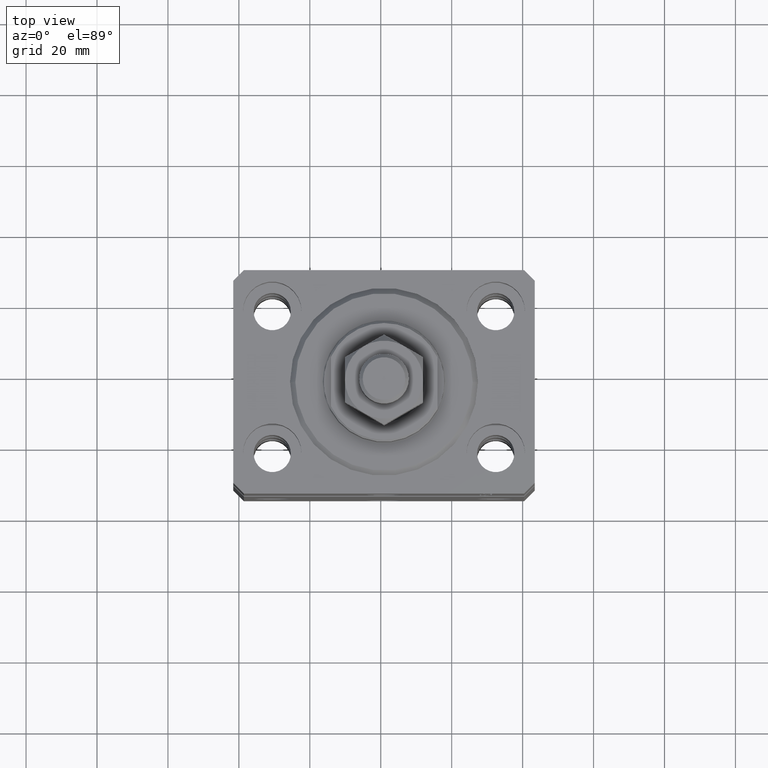
[diagram: clean part render]
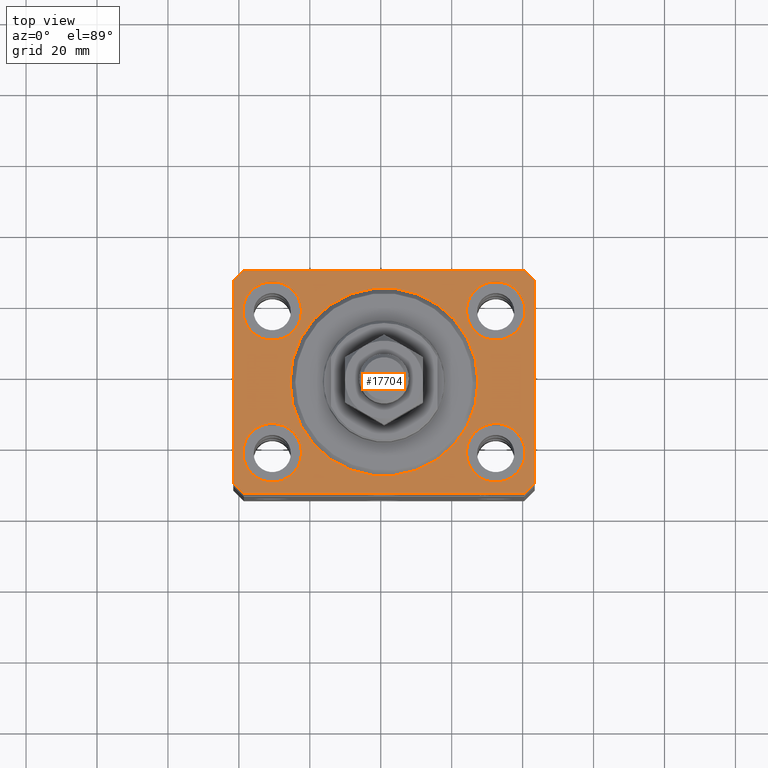
[diagram: same view with one face highlighted and labeled with its STEP entity id]
A machine part, top view. The second image highlights one B-rep face of the part: STEP entity #17704.
In plain terms, the highlighted planar face has unit normal (0, 0, 1).
Its self-contained STEP definition (entity closure, byte-faithful):
#8 = DIRECTION ( 'NONE',  ( -1.000000000000000000, 0.000000000000000000, 0.000000000000000000 ) ) ;
#14 = EDGE_CURVE ( 'NONE', #45617, #3945, #15445, .T. ) ;
#529 = CARTESIAN_POINT ( 'NONE',  ( 23.25000000000000355, -20.00000000000000000, 0.000000000000000000 ) ) ;
#639 = AXIS2_PLACEMENT_3D ( 'NONE', #39961, #21237, #14121 ) ;
#934 = LINE ( 'NONE', #43893, #38611 ) ;
#1935 = CARTESIAN_POINT ( 'NONE',  ( -39.50000000000000711, 31.50000000000000000, 0.000000000000000000 ) ) ;
#2170 = DIRECTION ( 'NONE',  ( 1.000000000000000000, 0.000000000000000000, 0.000000000000000000 ) ) ;
#2972 = ORIENTED_EDGE ( 'NONE', *, *, #39874, .F. ) ;
#3442 = EDGE_CURVE ( 'NONE', #38457, #10755, #3960, .T. ) ;
#3489 = ORIENTED_EDGE ( 'NONE', *, *, #3442, .F. ) ;
#3611 = CARTESIAN_POINT ( 'NONE',  ( -42.50000000000000000, -28.50000000000000000, 0.000000000000000000 ) ) ;
#3807 = EDGE_LOOP ( 'NONE', ( #12497, #35484 ) ) ;
#3820 = EDGE_LOOP ( 'NONE', ( #45065, #45287 ) ) ;
#3945 = VERTEX_POINT ( 'NONE', #41639 ) ;
#3960 = CIRCLE ( 'NONE', #8507, 8.250000000000000000 ) ;
#3997 = DIRECTION ( 'NONE',  ( 8.886653596232072440E-15, 1.000000000000000000, 0.000000000000000000 ) ) ;
#4340 = VERTEX_POINT ( 'NONE', #12050 ) ;
#4521 = ORIENTED_EDGE ( 'NONE', *, *, #17115, .T. ) ;
#4578 = ORIENTED_EDGE ( 'NONE', *, *, #9215, .T. ) ;
#4871 = EDGE_LOOP ( 'NONE', ( #14316, #22277, #28996, #4578, #4521, #46361, #23792, #21116 ) ) ;
#6419 = VECTOR ( 'NONE', #3997, 1000.000000000000000 ) ;
#6818 = VERTEX_POINT ( 'NONE', #1935 ) ;
#6972 = EDGE_CURVE ( 'NONE', #4340, #29393, #16177, .T. ) ;
#7039 = CARTESIAN_POINT ( 'NONE',  ( -39.75000000000000000, -20.00000000000000000, 0.000000000000000000 ) ) ;
#7576 = EDGE_LOOP ( 'NONE', ( #14851, #2972 ) ) ;
#7579 = CARTESIAN_POINT ( 'NONE',  ( 42.50000000000000711, -28.50000000000000355, 0.000000000000000000 ) ) ;
#7616 = VERTEX_POINT ( 'NONE', #529 ) ;
#7978 = CIRCLE ( 'NONE', #20095, 8.250000000000000000 ) ;
#7997 = AXIS2_PLACEMENT_3D ( 'NONE', #11212, #29471, #17866 ) ;
#8038 = DIRECTION ( 'NONE',  ( 0.000000000000000000, 0.000000000000000000, 1.000000000000000000 ) ) ;
#8353 = EDGE_CURVE ( 'NONE', #10755, #38457, #7978, .T. ) ;
#8507 = AXIS2_PLACEMENT_3D ( 'NONE', #23716, #20152, #16588 ) ;
#8838 = FACE_BOUND ( 'NONE', #28707, .T. ) ;
#8877 = CARTESIAN_POINT ( 'NONE',  ( 23.25000000000000355, 20.00000000000001066, 0.000000000000000000 ) ) ;
#9215 = EDGE_CURVE ( 'NONE', #15326, #12354, #14497, .T. ) ;
#9984 = VERTEX_POINT ( 'NONE', #8877 ) ;
#10467 = ORIENTED_EDGE ( 'NONE', *, *, #41407, .F. ) ;
#10755 = VERTEX_POINT ( 'NONE', #32361 ) ;
#10862 = ORIENTED_EDGE ( 'NONE', *, *, #34164, .F. ) ;
#11038 = FACE_BOUND ( 'NONE', #3807, .T. ) ;
#11212 = CARTESIAN_POINT ( 'NONE',  ( 31.50000000000000000, 20.00000000000001066, 0.000000000000000000 ) ) ;
#11892 = CARTESIAN_POINT ( 'NONE',  ( 42.50000000000051870, 28.49999999999995381, 0.000000000000000000 ) ) ;
#12050 = CARTESIAN_POINT ( 'NONE',  ( -23.25000000000000000, 20.00000000000000000, 0.000000000000000000 ) ) ;
#12072 = CARTESIAN_POINT ( 'NONE',  ( -31.50000000000000000, 20.00000000000000000, 0.000000000000000000 ) ) ;
#12215 = EDGE_CURVE ( 'NONE', #29393, #4340, #45318, .T. ) ;
#12265 = AXIS2_PLACEMENT_3D ( 'NONE', #43513, #32349, #39706 ) ;
#12354 = VERTEX_POINT ( 'NONE', #43138 ) ;
#12386 = FACE_BOUND ( 'NONE', #21836, .T. ) ;
#12497 = ORIENTED_EDGE ( 'NONE', *, *, #6972, .F. ) ;
#12744 = DIRECTION ( 'NONE',  ( 1.000000000000000000, 0.000000000000000000, 0.000000000000000000 ) ) ;
#13059 = CARTESIAN_POINT ( 'NONE',  ( 39.74999999999999289, 20.00000000000001066, 0.000000000000000000 ) ) ;
#14076 = EDGE_CURVE ( 'NONE', #7616, #37538, #27176, .T. ) ;
#14121 = DIRECTION ( 'NONE',  ( 1.000000000000000000, 0.000000000000000000, 0.000000000000000000 ) ) ;
#14316 = ORIENTED_EDGE ( 'NONE', *, *, #37663, .T. ) ;
#14383 = AXIS2_PLACEMENT_3D ( 'NONE', #40205, #15940, #44020 ) ;
#14497 = LINE ( 'NONE', #3611, #39891 ) ;
#14851 = ORIENTED_EDGE ( 'NONE', *, *, #22473, .F. ) ;
#15060 = PLANE ( 'NONE',  #14383 ) ;
#15326 = VERTEX_POINT ( 'NONE', #35602 ) ;
#15425 = AXIS2_PLACEMENT_3D ( 'NONE', #46288, #16858, #2170 ) ;
#15445 = LINE ( 'NONE', #11892, #21292 ) ;
#15581 = EDGE_CURVE ( 'NONE', #27638, #15326, #16353, .T. ) ;
#15839 = EDGE_CURVE ( 'NONE', #37538, #7616, #21895, .T. ) ;
#15940 = DIRECTION ( 'NONE',  ( 0.000000000000000000, 0.000000000000000000, 1.000000000000000000 ) ) ;
#16177 = CIRCLE ( 'NONE', #15425, 8.250000000000000000 ) ;
#16190 = CIRCLE ( 'NONE', #28327, 26.50000000000000355 ) ;
#16353 = LINE ( 'NONE', #41521, #40846 ) ;
#16530 = CARTESIAN_POINT ( 'NONE',  ( 31.50000000000000000, -20.00000000000000000, 0.000000000000000000 ) ) ;
#16588 = DIRECTION ( 'NONE',  ( 1.000000000000000000, 0.000000000000000000, 0.000000000000000000 ) ) ;
#16858 = DIRECTION ( 'NONE',  ( 0.000000000000000000, 0.000000000000000000, 1.000000000000000000 ) ) ;
#16998 = AXIS2_PLACEMENT_3D ( 'NONE', #29607, #8038, #22718 ) ;
#17115 = EDGE_CURVE ( 'NONE', #12354, #39568, #934, .T. ) ;
#17505 = VECTOR ( 'NONE', #22413, 1000.000000000000000 ) ;
#17704 = ADVANCED_FACE ( 'NONE', ( #12386, #33090, #8838, #11038, #41337, #36404 ), #15060, .T. ) ;
#17866 = DIRECTION ( 'NONE',  ( 1.000000000000000000, 0.000000000000000000, 0.000000000000000000 ) ) ;
#18571 = CARTESIAN_POINT ( 'NONE',  ( 0.000000000000000000, 0.000000000000000000, 0.000000000000000000 ) ) ;
#18641 = CARTESIAN_POINT ( 'NONE',  ( -26.50000000000000355, 3.245314017740486554E-15, 0.000000000000000000 ) ) ;
#19638 = DIRECTION ( 'NONE',  ( 0.7071067811865483499, 0.7071067811865466846, 0.000000000000000000 ) ) ;
#19948 = EDGE_CURVE ( 'NONE', #6818, #27638, #29769, .T. ) ;
#20091 = DIRECTION ( 'NONE',  ( 0.000000000000000000, 0.000000000000000000, 1.000000000000000000 ) ) ;
#20095 = AXIS2_PLACEMENT_3D ( 'NONE', #28286, #35164, #39194 ) ;
#20152 = DIRECTION ( 'NONE',  ( 0.000000000000000000, 0.000000000000000000, 1.000000000000000000 ) ) ;
#21116 = ORIENTED_EDGE ( 'NONE', *, *, #14, .T. ) ;
#21226 = VERTEX_POINT ( 'NONE', #7579 ) ;
#21237 = DIRECTION ( 'NONE',  ( 0.000000000000000000, 0.000000000000000000, 1.000000000000000000 ) ) ;
#21292 = VECTOR ( 'NONE', #26372, 1000.000000000000114 ) ;
#21836 = EDGE_LOOP ( 'NONE', ( #22081, #3489 ) ) ;
#21895 = CIRCLE ( 'NONE', #25700, 8.249999999999992895 ) ;
#22081 = ORIENTED_EDGE ( 'NONE', *, *, #8353, .F. ) ;
#22277 = ORIENTED_EDGE ( 'NONE', *, *, #19948, .T. ) ;
#22413 = DIRECTION ( 'NONE',  ( -0.7071067811865471286, -0.7071067811865479058, 0.000000000000000000 ) ) ;
#22473 = EDGE_CURVE ( 'NONE', #45790, #28787, #44110, .T. ) ;
#22718 = DIRECTION ( 'NONE',  ( 1.000000000000000000, 0.000000000000000000, 0.000000000000000000 ) ) ;
#22724 = CARTESIAN_POINT ( 'NONE',  ( 39.50000000000000711, -31.50000000000000000, 0.000000000000000000 ) ) ;
#23084 = DIRECTION ( 'NONE',  ( 0.000000000000000000, 0.000000000000000000, 1.000000000000000000 ) ) ;
#23716 = CARTESIAN_POINT ( 'NONE',  ( -31.50000000000000000, -20.00000000000000000, 0.000000000000000000 ) ) ;
#23792 = ORIENTED_EDGE ( 'NONE', *, *, #32386, .T. ) ;
#24664 = CIRCLE ( 'NONE', #7997, 8.249999999999992895 ) ;
#25700 = AXIS2_PLACEMENT_3D ( 'NONE', #16530, #20091, #12744 ) ;
#26372 = DIRECTION ( 'NONE',  ( -0.7071067811865356934, 0.7071067811865594521, 0.000000000000000000 ) ) ;
#26540 = LINE ( 'NONE', #22724, #44942 ) ;
#26552 = DIRECTION ( 'NONE',  ( 0.000000000000000000, 0.000000000000000000, 1.000000000000000000 ) ) ;
#27176 = CIRCLE ( 'NONE', #639, 8.249999999999992895 ) ;
#27586 = VECTOR ( 'NONE', #8, 1000.000000000000000 ) ;
#27637 = CARTESIAN_POINT ( 'NONE',  ( 39.50000000000000711, -31.50000000000000000, 0.000000000000000000 ) ) ;
#27638 = VERTEX_POINT ( 'NONE', #36254 ) ;
#28286 = CARTESIAN_POINT ( 'NONE',  ( -31.50000000000000000, -20.00000000000000000, 0.000000000000000000 ) ) ;
#28327 = AXIS2_PLACEMENT_3D ( 'NONE', #18571, #23084, #30198 ) ;
#28398 = CIRCLE ( 'NONE', #16998, 8.249999999999992895 ) ;
#28434 = EDGE_CURVE ( 'NONE', #39568, #21226, #26540, .T. ) ;
#28707 = EDGE_LOOP ( 'NONE', ( #10862, #10467 ) ) ;
#28787 = VERTEX_POINT ( 'NONE', #18641 ) ;
#28996 = ORIENTED_EDGE ( 'NONE', *, *, #15581, .T. ) ;
#29393 = VERTEX_POINT ( 'NONE', #43934 ) ;
#29471 = DIRECTION ( 'NONE',  ( 0.000000000000000000, 0.000000000000000000, 1.000000000000000000 ) ) ;
#29607 = CARTESIAN_POINT ( 'NONE',  ( 31.50000000000000000, 20.00000000000001066, 0.000000000000000000 ) ) ;
#29769 = LINE ( 'NONE', #33325, #17505 ) ;
#30120 = CARTESIAN_POINT ( 'NONE',  ( 42.50000000000051870, 28.49999999999995381, 0.000000000000000000 ) ) ;
#30198 = DIRECTION ( 'NONE',  ( 1.000000000000000000, 0.000000000000000000, 0.000000000000000000 ) ) ;
#30889 = CARTESIAN_POINT ( 'NONE',  ( 39.74999999999999289, -20.00000000000000000, 0.000000000000000000 ) ) ;
#32349 = DIRECTION ( 'NONE',  ( 0.000000000000000000, 0.000000000000000000, 1.000000000000000000 ) ) ;
#32361 = CARTESIAN_POINT ( 'NONE',  ( -23.25000000000000000, -20.00000000000000000, 0.000000000000000000 ) ) ;
#32386 = EDGE_CURVE ( 'NONE', #21226, #45617, #43858, .T. ) ;
#32758 = DIRECTION ( 'NONE',  ( 0.7071067811865471286, -0.7071067811865479058, 0.000000000000000000 ) ) ;
#33090 = FACE_BOUND ( 'NONE', #3820, .T. ) ;
#33325 = CARTESIAN_POINT ( 'NONE',  ( -39.50000000000000711, 31.50000000000000000, 0.000000000000000000 ) ) ;
#34164 = EDGE_CURVE ( 'NONE', #43340, #9984, #24664, .T. ) ;
#35164 = DIRECTION ( 'NONE',  ( 0.000000000000000000, 0.000000000000000000, 1.000000000000000000 ) ) ;
#35384 = CARTESIAN_POINT ( 'NONE',  ( 39.50000000000056843, 31.50000000000000000, 0.000000000000000000 ) ) ;
#35484 = ORIENTED_EDGE ( 'NONE', *, *, #12215, .F. ) ;
#35602 = CARTESIAN_POINT ( 'NONE',  ( -42.50000000000000000, -28.50000000000000000, 0.000000000000000000 ) ) ;
#36254 = CARTESIAN_POINT ( 'NONE',  ( -42.50000000000000000, 28.50000000000000000, 0.000000000000000000 ) ) ;
#36404 = FACE_OUTER_BOUND ( 'NONE', #4871, .T. ) ;
#37538 = VERTEX_POINT ( 'NONE', #30889 ) ;
#37663 = EDGE_CURVE ( 'NONE', #3945, #6818, #39175, .T. ) ;
#38457 = VERTEX_POINT ( 'NONE', #7039 ) ;
#38611 = VECTOR ( 'NONE', #44134, 1000.000000000000000 ) ;
#39175 = LINE ( 'NONE', #35384, #27586 ) ;
#39194 = DIRECTION ( 'NONE',  ( 1.000000000000000000, 0.000000000000000000, 0.000000000000000000 ) ) ;
#39230 = AXIS2_PLACEMENT_3D ( 'NONE', #12072, #26552, #41022 ) ;
#39568 = VERTEX_POINT ( 'NONE', #27637 ) ;
#39706 = DIRECTION ( 'NONE',  ( 1.000000000000000000, 0.000000000000000000, 0.000000000000000000 ) ) ;
#39874 = EDGE_CURVE ( 'NONE', #28787, #45790, #16190, .T. ) ;
#39891 = VECTOR ( 'NONE', #32758, 1000.000000000000000 ) ;
#39961 = CARTESIAN_POINT ( 'NONE',  ( 31.50000000000000000, -20.00000000000000000, 0.000000000000000000 ) ) ;
#40041 = CARTESIAN_POINT ( 'NONE',  ( 42.50000000000000711, -28.50000000000000355, 0.000000000000000000 ) ) ;
#40205 = CARTESIAN_POINT ( 'NONE',  ( 0.000000000000000000, 0.000000000000000000, 0.000000000000000000 ) ) ;
#40846 = VECTOR ( 'NONE', #45331, 1000.000000000000000 ) ;
#41022 = DIRECTION ( 'NONE',  ( 1.000000000000000000, 0.000000000000000000, 0.000000000000000000 ) ) ;
#41337 = FACE_BOUND ( 'NONE', #7576, .T. ) ;
#41407 = EDGE_CURVE ( 'NONE', #9984, #43340, #28398, .T. ) ;
#41521 = CARTESIAN_POINT ( 'NONE',  ( -42.50000000000000000, 28.50000000000000000, 0.000000000000000000 ) ) ;
#41639 = CARTESIAN_POINT ( 'NONE',  ( 39.50000000000056843, 31.50000000000000000, 0.000000000000000000 ) ) ;
#43138 = CARTESIAN_POINT ( 'NONE',  ( -39.50000000000000711, -31.50000000000000000, 0.000000000000000000 ) ) ;
#43340 = VERTEX_POINT ( 'NONE', #13059 ) ;
#43513 = CARTESIAN_POINT ( 'NONE',  ( 0.000000000000000000, 0.000000000000000000, 0.000000000000000000 ) ) ;
#43858 = LINE ( 'NONE', #40041, #6419 ) ;
#43893 = CARTESIAN_POINT ( 'NONE',  ( -39.50000000000000711, -31.50000000000000000, 0.000000000000000000 ) ) ;
#43934 = CARTESIAN_POINT ( 'NONE',  ( -39.75000000000000000, 20.00000000000000000, 0.000000000000000000 ) ) ;
#44020 = DIRECTION ( 'NONE',  ( 1.000000000000000000, 0.000000000000000000, -0.000000000000000000 ) ) ;
#44110 = CIRCLE ( 'NONE', #12265, 26.50000000000000355 ) ;
#44134 = DIRECTION ( 'NONE',  ( 1.000000000000000000, 0.000000000000000000, 0.000000000000000000 ) ) ;
#44942 = VECTOR ( 'NONE', #19638, 1000.000000000000000 ) ;
#45065 = ORIENTED_EDGE ( 'NONE', *, *, #15839, .F. ) ;
#45287 = ORIENTED_EDGE ( 'NONE', *, *, #14076, .F. ) ;
#45318 = CIRCLE ( 'NONE', #39230, 8.250000000000000000 ) ;
#45331 = DIRECTION ( 'NONE',  ( 0.000000000000000000, -1.000000000000000000, 0.000000000000000000 ) ) ;
#45617 = VERTEX_POINT ( 'NONE', #30120 ) ;
#45790 = VERTEX_POINT ( 'NONE', #46244 ) ;
#46244 = CARTESIAN_POINT ( 'NONE',  ( 26.50000000000000355, 0.000000000000000000, 0.000000000000000000 ) ) ;
#46288 = CARTESIAN_POINT ( 'NONE',  ( -31.50000000000000000, 20.00000000000000000, 0.000000000000000000 ) ) ;
#46361 = ORIENTED_EDGE ( 'NONE', *, *, #28434, .T. ) ;